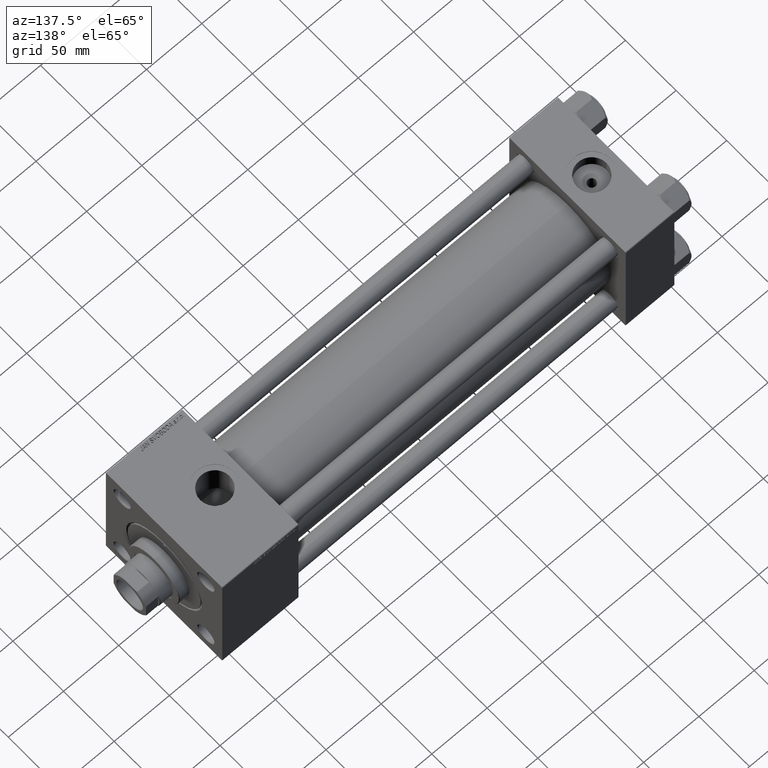
[diagram: clean part render]
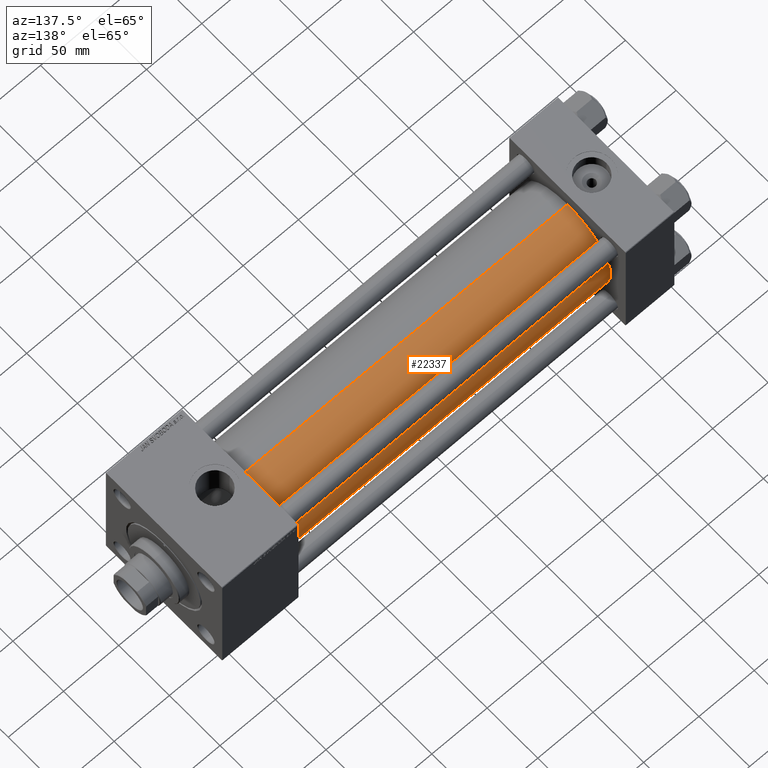
[diagram: same view with one face highlighted and labeled with its STEP entity id]
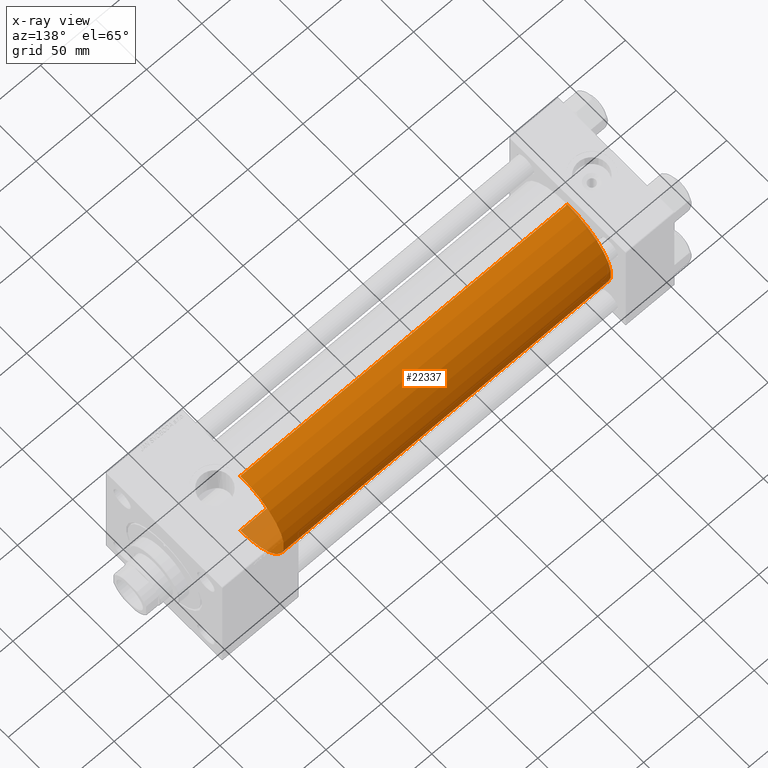
[diagram: x-ray of the same camera — body ghosted, the highlighted face saturated]
A machine part, auxiliary view. The second image highlights one B-rep face of the part: STEP entity #22337.
The next image is the same camera in x-ray: the body ghosted, the highlighted face saturated — about 3% of this face is hidden behind the body in this view.
In plain terms, the highlighted cylindrical surface (partial cylindrical patch) has radius 43 mm, axis along (-1, -0, -0).
Its self-contained STEP definition (entity closure, byte-faithful):
#2342 = CARTESIAN_POINT ( 'NONE',  ( 339.9999999999999432, -2.602085213965210642E-15, 43.00000000000000000 ) ) ;
#4063 = CARTESIAN_POINT ( 'NONE',  ( 43.99999999999998579, -2.602085213965210642E-15, 43.00000000000000000 ) ) ;
#5155 = DIRECTION ( 'NONE',  ( 0.000000000000000000, 0.000000000000000000, -1.000000000000000000 ) ) ;
#6012 = DIRECTION ( 'NONE',  ( -1.000000000000000000, -0.000000000000000000, -0.000000000000000000 ) ) ;
#8400 = AXIS2_PLACEMENT_3D ( 'NONE', #44813, #6012, #37370 ) ;
#9490 = EDGE_LOOP ( 'NONE', ( #22150, #37196, #29834, #22412 ) ) ;
#9916 = DIRECTION ( 'NONE',  ( 0.000000000000000000, 0.000000000000000000, 1.000000000000000000 ) ) ;
#13450 = FACE_OUTER_BOUND ( 'NONE', #9490, .T. ) ;
#13766 = VERTEX_POINT ( 'NONE', #17385 ) ;
#16233 = EDGE_CURVE ( 'NONE', #37430, #18241, #37882, .T. ) ;
#17334 = VERTEX_POINT ( 'NONE', #45889 ) ;
#17385 = CARTESIAN_POINT ( 'NONE',  ( 339.9999999999999432, -2.602085213965210642E-15, 43.00000000000000000 ) ) ;
#18007 = DIRECTION ( 'NONE',  ( -1.000000000000000000, -0.000000000000000000, -0.000000000000000000 ) ) ;
#18241 = VERTEX_POINT ( 'NONE', #4063 ) ;
#20477 = VECTOR ( 'NONE', #18007, 1000.000000000000000 ) ;
#20995 = AXIS2_PLACEMENT_3D ( 'NONE', #32936, #40382, #5155 ) ;
#22150 = ORIENTED_EDGE ( 'NONE', *, *, #36369, .F. ) ;
#22337 = ADVANCED_FACE ( 'NONE', ( #13450 ), #29140, .T. ) ;
#22412 = ORIENTED_EDGE ( 'NONE', *, *, #45090, .F. ) ;
#23200 = EDGE_CURVE ( 'NONE', #17334, #37430, #33104, .T. ) ;
#24641 = CARTESIAN_POINT ( 'NONE',  ( 43.99999999999998579, 2.663896022368408223E-15, -43.00000000000000000 ) ) ;
#25606 = CARTESIAN_POINT ( 'NONE',  ( 43.99999999999998579, -2.602085213965210642E-15, 0.000000000000000000 ) ) ;
#28195 = CARTESIAN_POINT ( 'NONE',  ( 339.9999999999999432, 2.663896022368408223E-15, -43.00000000000000000 ) ) ;
#28450 = DIRECTION ( 'NONE',  ( -1.000000000000000000, -0.000000000000000000, -0.000000000000000000 ) ) ;
#29140 = CYLINDRICAL_SURFACE ( 'NONE', #8400, 43.00000000000000000 ) ;
#29834 = ORIENTED_EDGE ( 'NONE', *, *, #16233, .T. ) ;
#30005 = CIRCLE ( 'NONE', #20995, 43.00000000000000000 ) ;
#32936 = CARTESIAN_POINT ( 'NONE',  ( 339.9999999999999432, -2.602085213965210642E-15, 0.000000000000000000 ) ) ;
#33104 = LINE ( 'NONE', #28195, #39652 ) ;
#35437 = AXIS2_PLACEMENT_3D ( 'NONE', #25606, #46134, #9916 ) ;
#36369 = EDGE_CURVE ( 'NONE', #17334, #13766, #30005, .T. ) ;
#37196 = ORIENTED_EDGE ( 'NONE', *, *, #23200, .T. ) ;
#37370 = DIRECTION ( 'NONE',  ( 0.000000000000000000, 0.000000000000000000, 1.000000000000000000 ) ) ;
#37430 = VERTEX_POINT ( 'NONE', #24641 ) ;
#37560 = LINE ( 'NONE', #2342, #20477 ) ;
#37882 = CIRCLE ( 'NONE', #35437, 43.00000000000000000 ) ;
#39652 = VECTOR ( 'NONE', #28450, 1000.000000000000000 ) ;
#40382 = DIRECTION ( 'NONE',  ( 1.000000000000000000, 0.000000000000000000, 0.000000000000000000 ) ) ;
#44813 = CARTESIAN_POINT ( 'NONE',  ( 339.9999999999999432, -2.602085213965210642E-15, 0.000000000000000000 ) ) ;
#45090 = EDGE_CURVE ( 'NONE', #13766, #18241, #37560, .T. ) ;
#45889 = CARTESIAN_POINT ( 'NONE',  ( 339.9999999999999432, 2.663896022368408223E-15, -43.00000000000000000 ) ) ;
#46134 = DIRECTION ( 'NONE',  ( 1.000000000000000000, -0.000000000000000000, 0.000000000000000000 ) ) ;